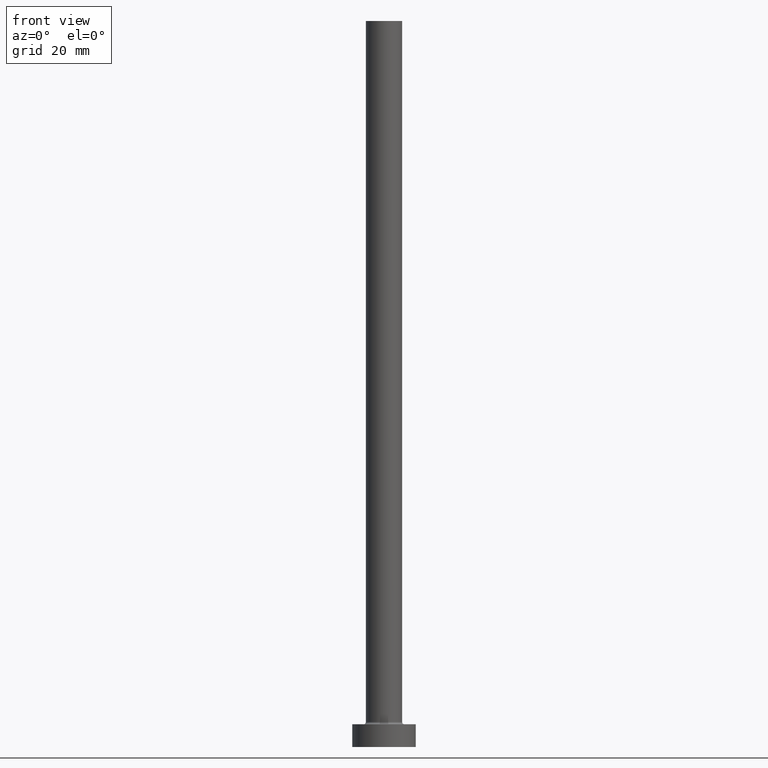
[diagram: clean part render]
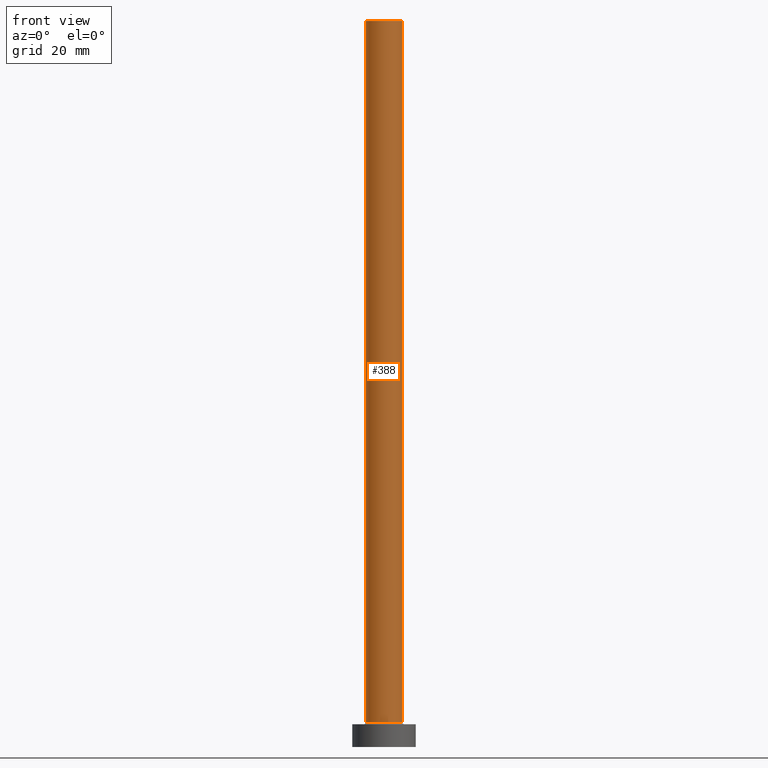
[diagram: same view with one face highlighted and labeled with its STEP entity id]
A machine part, front view. The second image highlights one B-rep face of the part: STEP entity #388.
In plain terms, the highlighted cylindrical surface (edge-blend (fillet) strip) has radius 4 mm, axis along (-0, -0, -1).
Its self-contained STEP definition (entity closure, byte-faithful):
#19 = CARTESIAN_POINT ( 'NONE',  ( 4.000000000000000000, 4.898587196589412829E-16, 5.500000000000005329 ) ) ;
#25 = VERTEX_POINT ( 'NONE', #293 ) ;
#27 = DIRECTION ( 'NONE',  ( -0.000000000000000000, -0.000000000000000000, -1.000000000000000000 ) ) ;
#30 = DIRECTION ( 'NONE',  ( -1.000000000000000000, 0.000000000000000000, 0.000000000000000000 ) ) ;
#34 = AXIS2_PLACEMENT_3D ( 'NONE', #442, #434, #441 ) ;
#51 = EDGE_CURVE ( 'NONE', #298, #403, #119, .T. ) ;
#61 = ORIENTED_EDGE ( 'NONE', *, *, #375, .T. ) ;
#66 = DIRECTION ( 'NONE',  ( -0.000000000000000000, -0.000000000000000000, -1.000000000000000000 ) ) ;
#85 = VECTOR ( 'NONE', #66, 1000.000000000000000 ) ;
#115 = CARTESIAN_POINT ( 'NONE',  ( 0.000000000000000000, 0.000000000000000000, 5.500000000000005329 ) ) ;
#119 = CIRCLE ( 'NONE', #34, 4.000000000000000000 ) ;
#129 = ORIENTED_EDGE ( 'NONE', *, *, #425, .F. ) ;
#153 = DIRECTION ( 'NONE',  ( 0.000000000000000000, 0.000000000000000000, 1.000000000000000000 ) ) ;
#170 = CARTESIAN_POINT ( 'NONE',  ( -4.000000000000000000, 0.000000000000000000, 160.0000000000000000 ) ) ;
#178 = FACE_OUTER_BOUND ( 'NONE', #317, .T. ) ;
#223 = EDGE_CURVE ( 'NONE', #25, #239, #381, .T. ) ;
#239 = VERTEX_POINT ( 'NONE', #19 ) ;
#243 = LINE ( 'NONE', #170, #305 ) ;
#261 = AXIS2_PLACEMENT_3D ( 'NONE', #115, #153, #426 ) ;
#287 = LINE ( 'NONE', #391, #85 ) ;
#293 = CARTESIAN_POINT ( 'NONE',  ( -4.000000000000000000, 0.000000000000000000, 5.500000000000005329 ) ) ;
#298 = VERTEX_POINT ( 'NONE', #325 ) ;
#299 = AXIS2_PLACEMENT_3D ( 'NONE', #457, #365, #30 ) ;
#305 = VECTOR ( 'NONE', #27, 1000.000000000000000 ) ;
#317 = EDGE_LOOP ( 'NONE', ( #129, #447, #61, #393 ) ) ;
#325 = CARTESIAN_POINT ( 'NONE',  ( -4.000000000000000000, 0.000000000000000000, 160.0000000000000000 ) ) ;
#365 = DIRECTION ( 'NONE',  ( -0.000000000000000000, -0.000000000000000000, -1.000000000000000000 ) ) ;
#375 = EDGE_CURVE ( 'NONE', #298, #25, #243, .T. ) ;
#381 = CIRCLE ( 'NONE', #261, 4.000000000000000000 ) ;
#388 = ADVANCED_FACE ( 'NONE', ( #178 ), #394, .T. ) ;
#391 = CARTESIAN_POINT ( 'NONE',  ( 4.000000000000000000, 4.898587196589412829E-16, 160.0000000000000000 ) ) ;
#393 = ORIENTED_EDGE ( 'NONE', *, *, #223, .T. ) ;
#394 = CYLINDRICAL_SURFACE ( 'NONE', #299, 4.000000000000000000 ) ;
#403 = VERTEX_POINT ( 'NONE', #422 ) ;
#422 = CARTESIAN_POINT ( 'NONE',  ( 4.000000000000000000, 4.898587196589412829E-16, 160.0000000000000000 ) ) ;
#425 = EDGE_CURVE ( 'NONE', #403, #239, #287, .T. ) ;
#426 = DIRECTION ( 'NONE',  ( 1.000000000000000000, 0.000000000000000000, 0.000000000000000000 ) ) ;
#434 = DIRECTION ( 'NONE',  ( 0.000000000000000000, 0.000000000000000000, 1.000000000000000000 ) ) ;
#441 = DIRECTION ( 'NONE',  ( 1.000000000000000000, 0.000000000000000000, 0.000000000000000000 ) ) ;
#442 = CARTESIAN_POINT ( 'NONE',  ( 0.000000000000000000, 0.000000000000000000, 160.0000000000000000 ) ) ;
#447 = ORIENTED_EDGE ( 'NONE', *, *, #51, .F. ) ;
#457 = CARTESIAN_POINT ( 'NONE',  ( 0.000000000000000000, 0.000000000000000000, 160.0000000000000000 ) ) ;